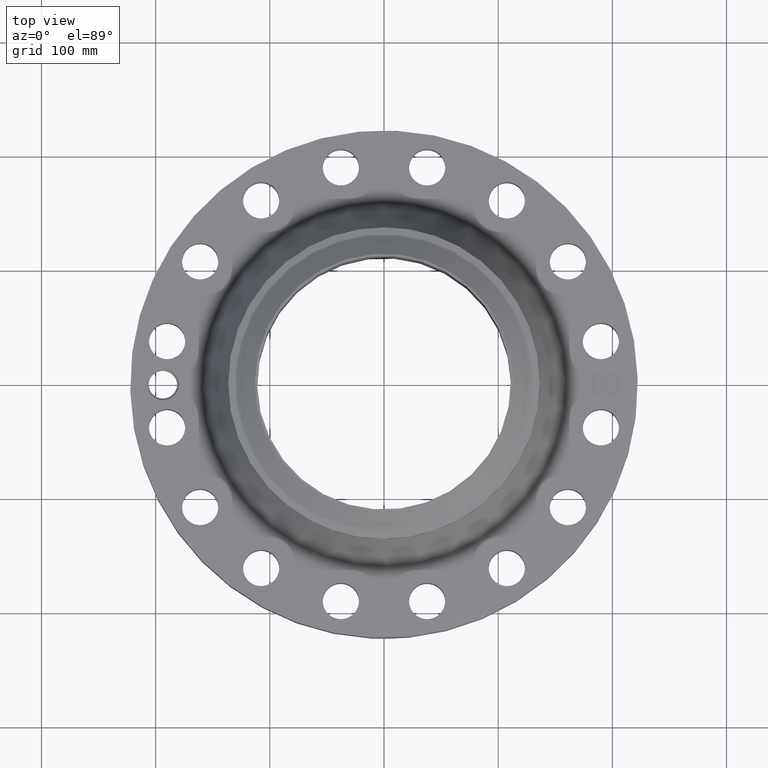
[diagram: clean part render]
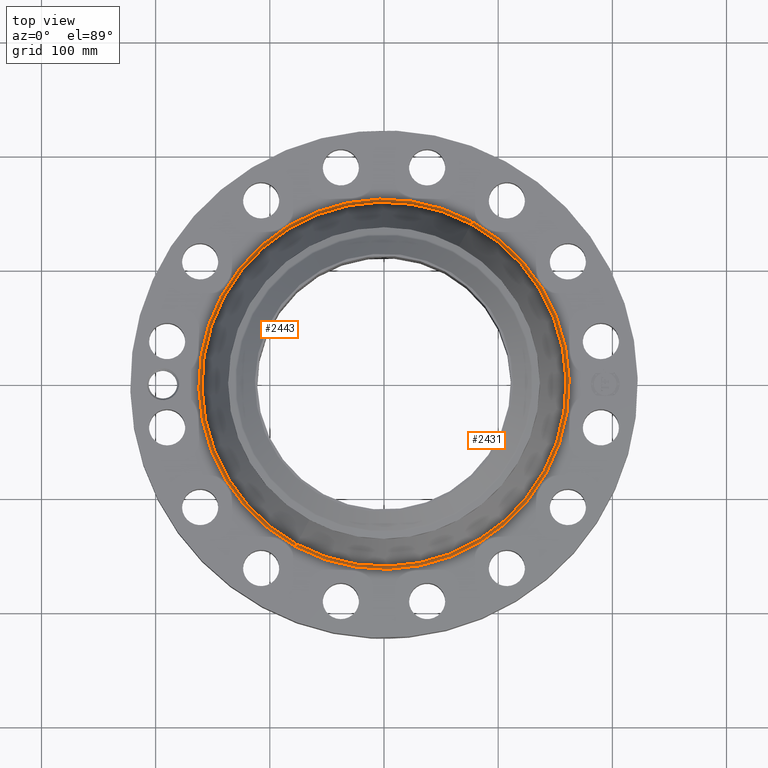
[diagram: same view with one multi-face feature highlighted, each face labeled with its STEP entity id]
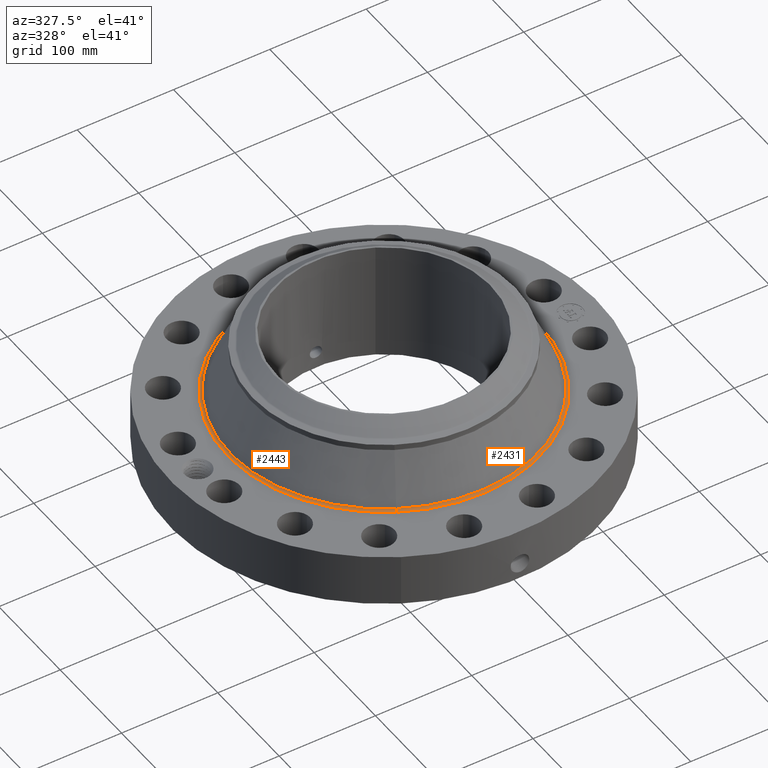
[diagram: same view with one multi-face feature highlighted, each face labeled with its STEP entity id]
A machine part, top view. The highlighted faces form ONE feature: a constant-radius fillet chain: 2 tangent blend faces with common blend radius 3.048 mm. The faces share edges in the B-rep.
A second angle (auxiliary view) of the same feature is appended — it is thin or edge-on in the first view.
Their STEP definitions:
[1] entity #2431 (Torus):
#728=AXIS2_PLACEMENT_3D('Circle Axis2P3D',#726,#727,$) ;
#2404=AXIS2_PLACEMENT_3D('Torus Axis2P3D',#2401,#2402,#2403) ;
#2408=AXIS2_PLACEMENT_3D('Circle Axis2P3D',#2406,#2407,$) ;
#2415=AXIS2_PLACEMENT_3D('Circle Axis2P3D',#2413,#2414,$) ;
#2422=AXIS2_PLACEMENT_3D('Circle Axis2P3D',#2420,#2421,$) ;
#721=CARTESIAN_POINT('Vertex',(-3.06151844407,-5.60407192166,2.37000000001)) ;
#723=CARTESIAN_POINT('Vertex',(3.06151844407,5.60407192166,2.37000000001)) ;
#726=CARTESIAN_POINT('Axis2P3D Location',(0.,0.,2.37000000001)) ;
#2401=CARTESIAN_POINT('Axis2P3D Location',(0.,0.,2.49000000001)) ;
#2406=CARTESIAN_POINT('Axis2P3D Location',(3.06151844407,5.60407192166,2.49000000001)) ;
#2410=CARTESIAN_POINT('Vertex',(3.00956475796,5.50897133715,2.43845687897)) ;
#2413=CARTESIAN_POINT('Axis2P3D Location',(0.,0.,2.43845687897)) ;
#2417=CARTESIAN_POINT('Vertex',(-3.00956475796,-5.50897133715,2.43845687897)) ;
#2420=CARTESIAN_POINT('Axis2P3D Location',(-3.06151844407,-5.60407192166,2.49000000001)) ;
#727=DIRECTION('Axis2P3D Direction',(0.,0.,-0.0393700787402)) ;
#2402=DIRECTION('Axis2P3D Direction',(0.,0.,-0.0393700787402)) ;
#2403=DIRECTION('Axis2P3D XDirection',(-0.0188750212049,-0.0345504945626,0.)) ;
#2407=DIRECTION('Axis2P3D Direction',(-0.0345504945626,0.0188750212049,0.)) ;
#2414=DIRECTION('Axis2P3D Direction',(0.,0.,-0.0393700787402)) ;
#2421=DIRECTION('Axis2P3D Direction',(0.0345504945626,-0.0188750212049,0.)) ;
#2426=ORIENTED_EDGE('',*,*,#730,.F.) ;
#2427=ORIENTED_EDGE('',*,*,#2412,.T.) ;
#2428=ORIENTED_EDGE('',*,*,#2419,.T.) ;
#2429=ORIENTED_EDGE('',*,*,#2424,.F.) ;
#2431=ADVANCED_FACE('PartBody',(#2430),#2405,.F.) ;
#729=CIRCLE('generated circle',#728,6.38580592302) ;
#2409=CIRCLE('generated circle',#2408,0.12) ;
#2416=CIRCLE('generated circle',#2415,6.27743938449) ;
#2423=CIRCLE('generated circle',#2422,0.12) ;
#2405=TOROIDAL_SURFACE('homeo Torus',#2404,6.38580592302,0.12) ;
#730=EDGE_CURVE('',#724,#722,#729,.T.) ;
#2412=EDGE_CURVE('',#724,#2411,#2409,.T.) ;
#2419=EDGE_CURVE('',#2411,#2418,#2416,.T.) ;
#2424=EDGE_CURVE('',#722,#2418,#2423,.T.) ;
#2425=EDGE_LOOP('',(#2426,#2427,#2428,#2429)) ;
#2430=FACE_OUTER_BOUND('',#2425,.T.) ;
#722=VERTEX_POINT('',#721) ;
#724=VERTEX_POINT('',#723) ;
#2411=VERTEX_POINT('',#2410) ;
#2418=VERTEX_POINT('',#2417) ;
[2] entity #2443 (Torus):
#719=AXIS2_PLACEMENT_3D('Circle Axis2P3D',#717,#718,$) ;
#2404=AXIS2_PLACEMENT_3D('Torus Axis2P3D',#2401,#2402,#2403) ;
#2408=AXIS2_PLACEMENT_3D('Circle Axis2P3D',#2406,#2407,$) ;
#2422=AXIS2_PLACEMENT_3D('Circle Axis2P3D',#2420,#2421,$) ;
#2434=AXIS2_PLACEMENT_3D('Circle Axis2P3D',#2432,#2433,$) ;
#717=CARTESIAN_POINT('Axis2P3D Location',(0.,0.,2.37000000001)) ;
#721=CARTESIAN_POINT('Vertex',(-3.06151844407,-5.60407192166,2.37000000001)) ;
#723=CARTESIAN_POINT('Vertex',(3.06151844407,5.60407192166,2.37000000001)) ;
#2401=CARTESIAN_POINT('Axis2P3D Location',(0.,0.,2.49000000001)) ;
#2406=CARTESIAN_POINT('Axis2P3D Location',(3.06151844407,5.60407192166,2.49000000001)) ;
#2410=CARTESIAN_POINT('Vertex',(3.00956475796,5.50897133715,2.43845687897)) ;
#2417=CARTESIAN_POINT('Vertex',(-3.00956475796,-5.50897133715,2.43845687897)) ;
#2420=CARTESIAN_POINT('Axis2P3D Location',(-3.06151844407,-5.60407192166,2.49000000001)) ;
#2432=CARTESIAN_POINT('Axis2P3D Location',(0.,0.,2.43845687897)) ;
#718=DIRECTION('Axis2P3D Direction',(0.,0.,-0.0393700787402)) ;
#2402=DIRECTION('Axis2P3D Direction',(0.,0.,-0.0393700787402)) ;
#2403=DIRECTION('Axis2P3D XDirection',(-0.0188750212049,-0.0345504945626,0.)) ;
#2407=DIRECTION('Axis2P3D Direction',(-0.0345504945626,0.0188750212049,0.)) ;
#2421=DIRECTION('Axis2P3D Direction',(0.0345504945626,-0.0188750212049,0.)) ;
#2433=DIRECTION('Axis2P3D Direction',(0.,0.,-0.0393700787402)) ;
#2438=ORIENTED_EDGE('',*,*,#725,.F.) ;
#2439=ORIENTED_EDGE('',*,*,#2424,.T.) ;
#2440=ORIENTED_EDGE('',*,*,#2436,.T.) ;
#2441=ORIENTED_EDGE('',*,*,#2412,.F.) ;
#2443=ADVANCED_FACE('PartBody',(#2442),#2405,.F.) ;
#720=CIRCLE('generated circle',#719,6.38580592302) ;
#2409=CIRCLE('generated circle',#2408,0.12) ;
#2423=CIRCLE('generated circle',#2422,0.12) ;
#2435=CIRCLE('generated circle',#2434,6.27743938449) ;
#2405=TOROIDAL_SURFACE('homeo Torus',#2404,6.38580592302,0.12) ;
#725=EDGE_CURVE('',#722,#724,#720,.T.) ;
#2412=EDGE_CURVE('',#724,#2411,#2409,.T.) ;
#2424=EDGE_CURVE('',#722,#2418,#2423,.T.) ;
#2436=EDGE_CURVE('',#2418,#2411,#2435,.T.) ;
#2437=EDGE_LOOP('',(#2438,#2439,#2440,#2441)) ;
#2442=FACE_OUTER_BOUND('',#2437,.T.) ;
#722=VERTEX_POINT('',#721) ;
#724=VERTEX_POINT('',#723) ;
#2411=VERTEX_POINT('',#2410) ;
#2418=VERTEX_POINT('',#2417) ;